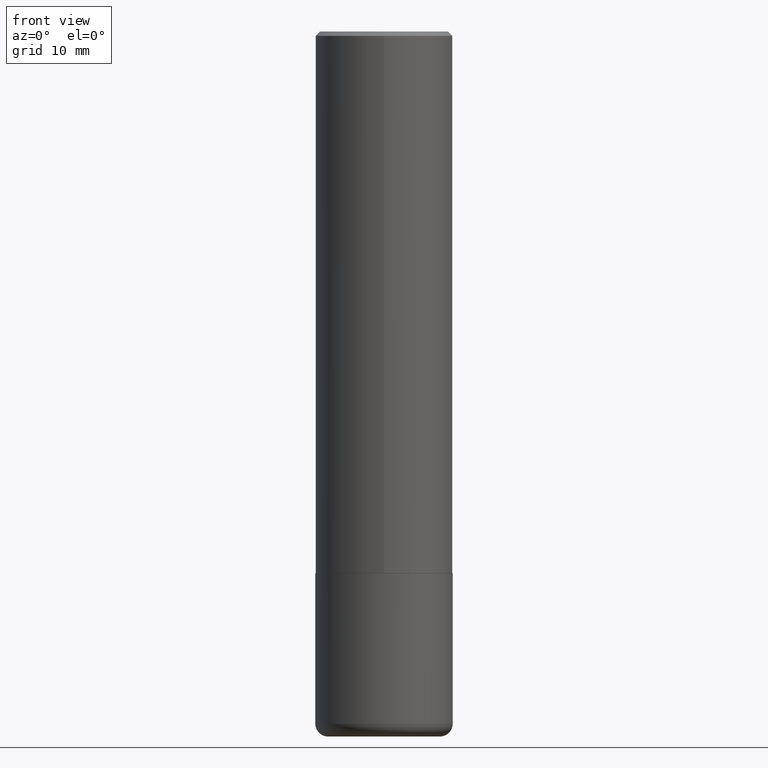
[diagram: clean part render]
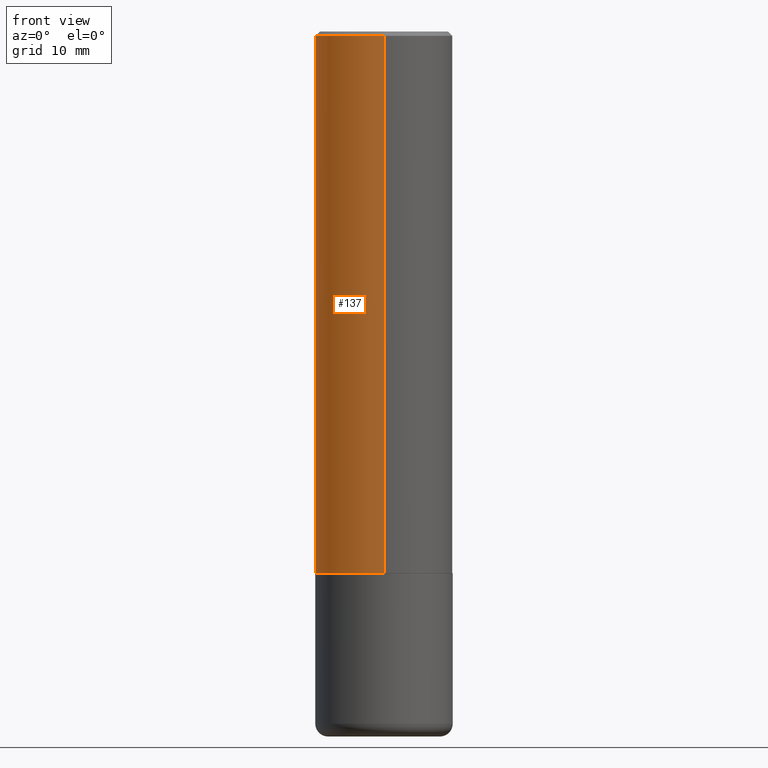
[diagram: same view with one face highlighted and labeled with its STEP entity id]
A machine part, front view. The second image highlights one B-rep face of the part: STEP entity #137.
In plain terms, the highlighted cylindrical surface (partial cylindrical patch) has radius 7.9997 mm, axis along (-0, 0, 1).
Its self-contained STEP definition (entity closure, byte-faithful):
#7 = DIRECTION ( 'NONE',  ( -2.441634677925747084E-29, 3.496972028735619789E-15, 1.000000000000000000 ) ) ;
#8 = VECTOR ( 'NONE', #274, 39.37007874015748143 ) ;
#11 = ORIENTED_EDGE ( 'NONE', *, *, #213, .F. ) ;
#30 = ORIENTED_EDGE ( 'NONE', *, *, #239, .T. ) ;
#51 = CARTESIAN_POINT ( 'NONE',  ( 6.053544856981305662E-29, -8.670042750844224214E-15, -2.479300000000000725 ) ) ;
#85 = DIRECTION ( 'NONE',  ( -2.441634677925747084E-29, 3.496972028735619789E-15, 1.000000000000000000 ) ) ;
#86 = FACE_OUTER_BOUND ( 'NONE', #246, .T. ) ;
#87 = DIRECTION ( 'NONE',  ( -2.441634677925747084E-29, 3.496972028735619789E-15, 1.000000000000000000 ) ) ;
#94 = CARTESIAN_POINT ( 'NONE',  ( -2.199284095337230706E-15, -0.3149500000000089450, -2.479299999999999393 ) ) ;
#103 = AXIS2_PLACEMENT_3D ( 'NONE', #404, #87, #414 ) ;
#119 = CARTESIAN_POINT ( 'NONE',  ( 2.237854346276435985E-15, 0.3149500000000001743, -1.101371340450283917E-15 ) ) ;
#127 = DIRECTION ( 'NONE',  ( -6.982962677686265922E-15, -1.000000000000000000, 3.496670018878889100E-15 ) ) ;
#131 = CARTESIAN_POINT ( 'NONE',  ( -2.199284095337290265E-15, -0.3149500000000001743, 1.101371340450283917E-15 ) ) ;
#137 = ADVANCED_FACE ( 'NONE', ( #86 ), #306, .T. ) ;
#145 = DIRECTION ( 'NONE',  ( -6.982962677686265922E-15, -1.000000000000000000, 3.469564049740290009E-15 ) ) ;
#199 = AXIS2_PLACEMENT_3D ( 'NONE', #336, #7, #127 ) ;
#213 = EDGE_CURVE ( 'NONE', #313, #256, #269, .T. ) ;
#224 = EDGE_CURVE ( 'NONE', #313, #407, #323, .T. ) ;
#225 = CARTESIAN_POINT ( 'NONE',  ( -2.160713844398143363E-15, -0.3149500000000000632, -0.01999999999999899775 ) ) ;
#239 = EDGE_CURVE ( 'NONE', #407, #415, #253, .T. ) ;
#243 = EDGE_CURVE ( 'NONE', #256, #415, #375, .T. ) ;
#246 = EDGE_LOOP ( 'NONE', ( #11, #416, #30, #294 ) ) ;
#253 = LINE ( 'NONE', #131, #8 ) ;
#256 = VERTEX_POINT ( 'NONE', #328 ) ;
#269 = LINE ( 'NONE', #119, #301 ) ;
#274 = DIRECTION ( 'NONE',  ( -2.441634677925747084E-29, 3.496972028735619395E-15, 1.000000000000000000 ) ) ;
#283 = CARTESIAN_POINT ( 'NONE',  ( 2.237854346276467145E-15, 0.3149499999999916255, -2.479300000000001614 ) ) ;
#294 = ORIENTED_EDGE ( 'NONE', *, *, #243, .F. ) ;
#301 = VECTOR ( 'NONE', #340, 39.37007874015748143 ) ;
#306 = CYLINDRICAL_SURFACE ( 'NONE', #103, 0.3149500000000001743 ) ;
#313 = VERTEX_POINT ( 'NONE', #283 ) ;
#323 = CIRCLE ( 'NONE', #343, 0.3149500000000002853 ) ;
#328 = CARTESIAN_POINT ( 'NONE',  ( 2.199284095337289871E-15, 0.3149499999999999522, -0.02000000000000120084 ) ) ;
#336 = CARTESIAN_POINT ( 'NONE',  ( 4.883269355851518516E-31, -6.993944057471272858E-17, -0.02000000000000009756 ) ) ;
#340 = DIRECTION ( 'NONE',  ( -2.441634677925747084E-29, 3.496972028735619395E-15, 1.000000000000000000 ) ) ;
#343 = AXIS2_PLACEMENT_3D ( 'NONE', #51, #85, #145 ) ;
#375 = CIRCLE ( 'NONE', #199, 0.3149500000000000077 ) ;
#404 = CARTESIAN_POINT ( 'NONE',  ( 0.000000000000000000, 0.000000000000000000, 0.000000000000000000 ) ) ;
#407 = VERTEX_POINT ( 'NONE', #94 ) ;
#414 = DIRECTION ( 'NONE',  ( -6.982962677686264344E-15, -1.000000000000000000, 3.496972028735619395E-15 ) ) ;
#415 = VERTEX_POINT ( 'NONE', #225 ) ;
#416 = ORIENTED_EDGE ( 'NONE', *, *, #224, .T. ) ;